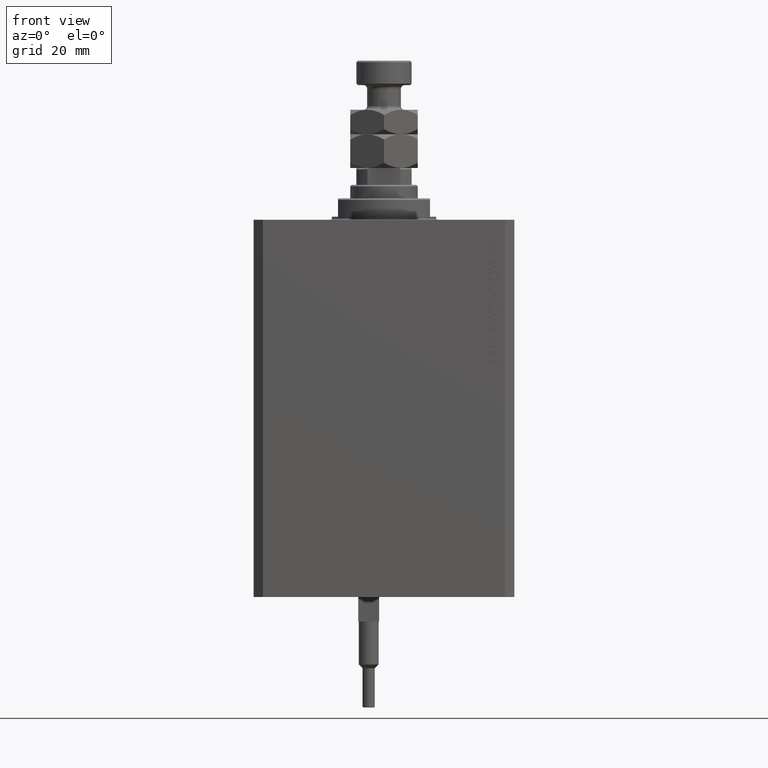
[diagram: clean part render]
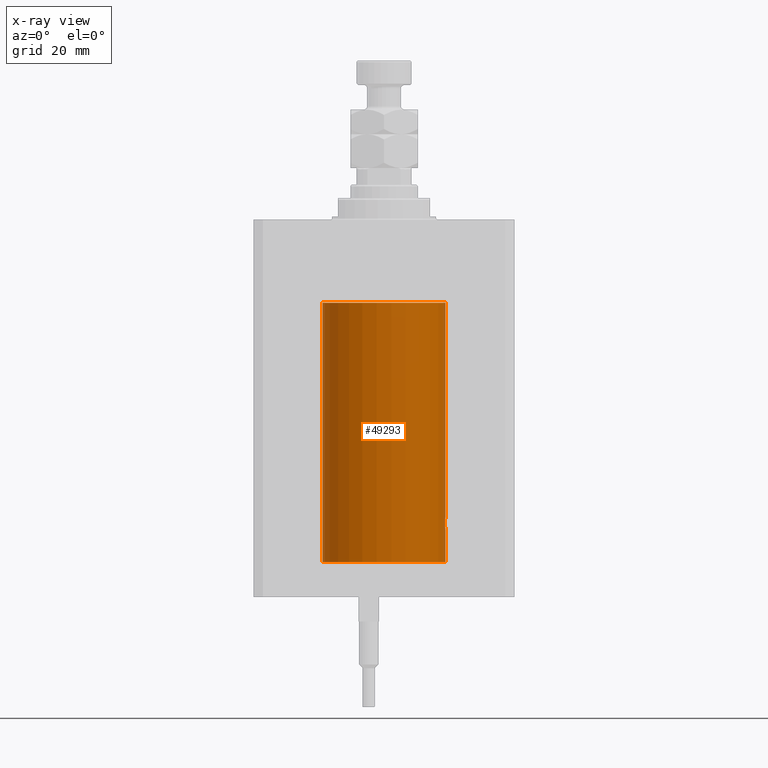
[diagram: x-ray — body ghosted, one internal face saturated and labeled with its STEP entity id]
A machine part, front view, then the same camera in x-ray: the body is ghosted and one INTERNAL B-rep face — a face not visible from any outside direction — is saturated and labeled: STEP entity #49293.
In plain terms, the highlighted cylindrical surface (partial cylindrical patch) has radius 20 mm, axis along (0, 0, 1).
Its self-contained STEP definition (entity closure, byte-faithful):
#997 = VECTOR ( 'NONE', #27153, 1000.000000000000000 ) ;
#1026 = CARTESIAN_POINT ( 'NONE',  ( 19.89974874213243439, -1.999999999999655609, -99.00000000000000000 ) ) ;
#1097 = EDGE_CURVE ( 'NONE', #15497, #25800, #22870, .T. ) ;
#1387 = CIRCLE ( 'NONE', #31936, 20.00000000000000000 ) ;
#2494 = CIRCLE ( 'NONE', #7306, 20.00000000000000000 ) ;
#3174 = AXIS2_PLACEMENT_3D ( 'NONE', #29318, #14698, #17991 ) ;
#3313 = CARTESIAN_POINT ( 'NONE',  ( 19.93679035661676835, -1.590502522866548585, -97.78041502771402804 ) ) ;
#4628 = ORIENTED_EDGE ( 'NONE', *, *, #48238, .F. ) ;
#4719 = VECTOR ( 'NONE', #8774, 1000.000000000000000 ) ;
#5150 = DIRECTION ( 'NONE',  ( 1.000000000000000000, 0.000000000000000000, 0.000000000000000000 ) ) ;
#5529 = CARTESIAN_POINT ( 'NONE',  ( 19.90106527362734568, -1.987020983172499422, -99.26214585379852906 ) ) ;
#6664 = FACE_OUTER_BOUND ( 'NONE', #29979, .T. ) ;
#7306 = AXIS2_PLACEMENT_3D ( 'NONE', #47583, #12308, #46835 ) ;
#8198 = CARTESIAN_POINT ( 'NONE',  ( 20.00000000000000000, 1.967327733996653312E-15, -101.0000000000000000 ) ) ;
#8278 = CARTESIAN_POINT ( 'NONE',  ( -20.00000000000000000, 2.449293598294706513E-15, -111.6000000000000085 ) ) ;
#8774 = DIRECTION ( 'NONE',  ( -0.000000000000000000, -0.000000000000000000, 1.000000000000000000 ) ) ;
#8865 = VECTOR ( 'NONE', #38895, 1000.000000000000000 ) ;
#9058 = CARTESIAN_POINT ( 'NONE',  ( 19.97604812261521090, -1.007662572237620457, -100.7471082404733096 ) ) ;
#9573 = VERTEX_POINT ( 'NONE', #11542 ) ;
#10026 = CARTESIAN_POINT ( 'NONE',  ( 19.92464121718639802, -1.736076547215872790, -100.0015422135783894 ) ) ;
#11067 = CARTESIAN_POINT ( 'NONE',  ( 19.90983652367462042, -1.897617924364799924, -98.35484020333801425 ) ) ;
#11542 = CARTESIAN_POINT ( 'NONE',  ( -20.00000000000000000, 2.449293598294706513E-15, -27.10000000000000142 ) ) ;
#12308 = DIRECTION ( 'NONE',  ( 0.000000000000000000, 0.000000000000000000, 1.000000000000000000 ) ) ;
#12574 = CARTESIAN_POINT ( 'NONE',  ( 20.00000000000000000, 0.000000000000000000, -111.6000000000000085 ) ) ;
#12640 = ORIENTED_EDGE ( 'NONE', *, *, #46452, .T. ) ;
#13079 = CARTESIAN_POINT ( 'NONE',  ( 19.90607187811043843, -1.936221525612430661, -99.51770555336665325 ) ) ;
#14248 = VERTEX_POINT ( 'NONE', #36505 ) ;
#14631 = CARTESIAN_POINT ( 'NONE',  ( 19.91915476385079842, -1.797169352086260830, -98.11266282055724730 ) ) ;
#14698 = DIRECTION ( 'NONE',  ( -0.000000000000000000, -0.000000000000000000, 1.000000000000000000 ) ) ;
#15497 = VERTEX_POINT ( 'NONE', #24870 ) ;
#16579 = LINE ( 'NONE', #8278, #4719 ) ;
#17597 = CARTESIAN_POINT ( 'NONE',  ( 20.00000000000000000, 1.967327733996653312E-15, -101.0000000000000000 ) ) ;
#17990 = EDGE_CURVE ( 'NONE', #14248, #45323, #1387, .T. ) ;
#17991 = DIRECTION ( 'NONE',  ( 1.000000000000000000, 0.000000000000000000, 0.000000000000000000 ) ) ;
#18406 = CARTESIAN_POINT ( 'NONE',  ( 19.96304361591165133, -1.229269670911803614, -97.40095624928315488 ) ) ;
#21197 = EDGE_CURVE ( 'NONE', #14248, #9573, #16579, .T. ) ;
#21371 = CARTESIAN_POINT ( 'NONE',  ( 19.91912874598169125, -1.797456133345314511, -99.88674870370387282 ) ) ;
#22175 = CARTESIAN_POINT ( 'NONE',  ( 19.99457156948952985, -0.5245703965536948621, -97.05250028761906833 ) ) ;
#22870 = LINE ( 'NONE', #29953, #997 ) ;
#23522 = CARTESIAN_POINT ( 'NONE',  ( 20.00000000000000000, 0.000000000000000000, -111.6000000000000085 ) ) ;
#23823 = VERTEX_POINT ( 'NONE', #31598 ) ;
#24285 = DIRECTION ( 'NONE',  ( 0.000000000000000000, 0.000000000000000000, 1.000000000000000000 ) ) ;
#24870 = CARTESIAN_POINT ( 'NONE',  ( 20.00000000000000000, -1.553109350199128042E-23, -97.00000000000000000 ) ) ;
#25800 = VERTEX_POINT ( 'NONE', #45036 ) ;
#26195 = CARTESIAN_POINT ( 'NONE',  ( 19.97612863609106171, -1.006156579624605252, -97.25197878504231142 ) ) ;
#26281 = ORIENTED_EDGE ( 'NONE', *, *, #34200, .T. ) ;
#27153 = DIRECTION ( 'NONE',  ( -0.000000000000000000, -0.000000000000000000, 1.000000000000000000 ) ) ;
#27300 = CARTESIAN_POINT ( 'NONE',  ( 0.000000000000000000, 0.000000000000000000, -111.6000000000000085 ) ) ;
#28394 = ORIENTED_EDGE ( 'NONE', *, *, #21197, .T. ) ;
#29179 = CARTESIAN_POINT ( 'NONE',  ( 19.96296989966237945, -1.230425635331405365, -100.5981187666770893 ) ) ;
#29318 = CARTESIAN_POINT ( 'NONE',  ( 0.000000000000000000, 0.000000000000000000, -111.6000000000000085 ) ) ;
#29953 = CARTESIAN_POINT ( 'NONE',  ( 20.00000000000000000, 0.000000000000000000, -111.6000000000000085 ) ) ;
#29979 = EDGE_LOOP ( 'NONE', ( #48798, #28394, #33259, #39882, #12640, #26281, #4628 ) ) ;
#30749 = CARTESIAN_POINT ( 'NONE',  ( 19.94343050116685845, -1.506032346525473020, -97.67754857126976731 ) ) ;
#31164 = EDGE_CURVE ( 'NONE', #9573, #25800, #2494, .T. ) ;
#31598 = CARTESIAN_POINT ( 'NONE',  ( 19.89974874213243439, -1.999999999999655609, -99.00000000000000000 ) ) ;
#31936 = AXIS2_PLACEMENT_3D ( 'NONE', #27300, #24285, #5150 ) ;
#32728 = CARTESIAN_POINT ( 'NONE',  ( 19.90981966846453588, -1.897793276286218411, -99.64463361322839319 ) ) ;
#32981 = CARTESIAN_POINT ( 'NONE',  ( 19.99999999999999645, -0.2642773949967771041, -100.9999999999999289 ) ) ;
#33259 = ORIENTED_EDGE ( 'NONE', *, *, #31164, .T. ) ;
#34200 = EDGE_CURVE ( 'NONE', #23823, #37089, #40521, .T. ) ;
#34270 = CARTESIAN_POINT ( 'NONE',  ( 19.90106531167246828, -1.987021080928412342, -98.73779127013027335 ) ) ;
#34591 = B_SPLINE_CURVE_WITH_KNOTS ( 'NONE', 3,
 ( #37804, #38050, #22175, #26195, #18406, #30749, #3313, #46106, #14631, #11067, #38295, #34270, #38552, #49626 ),
 .UNSPECIFIED., .F., .F.,
 ( 4, 2, 2, 2, 2, 2, 4 ),
 ( 0.006256819553330524898, 0.007039116231737640138, 0.007821412910144754510, 0.008212561249348312997, 0.008603709588551871484, 0.008994857927755429972, 0.009386006266958986724 ),
 .UNSPECIFIED. ) ;
#36263 = CARTESIAN_POINT ( 'NONE',  ( 19.94337316053471909, -1.506783194222099720, -100.3215850766146531 ) ) ;
#36505 = CARTESIAN_POINT ( 'NONE',  ( -20.00000000000000000, 2.449293598294706513E-15, -111.6000000000000085 ) ) ;
#37089 = VERTEX_POINT ( 'NONE', #8198 ) ;
#37804 = CARTESIAN_POINT ( 'NONE',  ( 20.00000000000000000, -1.553109350199128042E-23, -97.00000000000000000 ) ) ;
#38050 = CARTESIAN_POINT ( 'NONE',  ( 20.00000000000000000, -0.2612062508298597097, -97.00000000000005684 ) ) ;
#38295 = CARTESIAN_POINT ( 'NONE',  ( 19.90607912840593485, -1.936147476084615127, -98.48198538155280346 ) ) ;
#38552 = CARTESIAN_POINT ( 'NONE',  ( 19.89974874213243439, -1.999999999999655609, -98.86779873849403089 ) ) ;
#38895 = DIRECTION ( 'NONE',  ( -0.000000000000000000, -0.000000000000000000, 1.000000000000000000 ) ) ;
#39882 = ORIENTED_EDGE ( 'NONE', *, *, #1097, .F. ) ;
#40521 = B_SPLINE_CURVE_WITH_KNOTS ( 'NONE', 3,
 ( #1026, #40788, #5529, #13079, #32728, #21371, #10026, #47839, #36263, #29179, #9058, #48337, #32981, #17597 ),
 .UNSPECIFIED., .F., .F.,
 ( 4, 2, 2, 2, 2, 2, 4 ),
 ( 0.009386006266958986724, 0.009776776943204319378, 0.01016754761944965377, 0.01055831829569498642, 0.01094908897194031908, 0.01173063032443095663, 0.01251217167692159418 ),
 .UNSPECIFIED. ) ;
#40788 = CARTESIAN_POINT ( 'NONE',  ( 19.89974874213243083, -1.999999999999655165, -99.13207361806611573 ) ) ;
#43162 = LINE ( 'NONE', #23522, #8865 ) ;
#45036 = CARTESIAN_POINT ( 'NONE',  ( 20.00000000000000000, 0.000000000000000000, -27.10000000000000142 ) ) ;
#45323 = VERTEX_POINT ( 'NONE', #12574 ) ;
#46106 = CARTESIAN_POINT ( 'NONE',  ( 19.92467362751852988, -1.735709893904968437, -97.99780393930582534 ) ) ;
#46452 = EDGE_CURVE ( 'NONE', #15497, #23823, #34591, .T. ) ;
#46835 = DIRECTION ( 'NONE',  ( 1.000000000000000000, 0.000000000000000000, 0.000000000000000000 ) ) ;
#47583 = CARTESIAN_POINT ( 'NONE',  ( 0.000000000000000000, 0.000000000000000000, -27.10000000000000142 ) ) ;
#47839 = CARTESIAN_POINT ( 'NONE',  ( 19.93674030556024590, -1.591123942389839119, -100.2187588700503227 ) ) ;
#48238 = EDGE_CURVE ( 'NONE', #45323, #37089, #43162, .T. ) ;
#48337 = CARTESIAN_POINT ( 'NONE',  ( 19.99450726301181192, -0.5268413099739941430, -100.9468459871092705 ) ) ;
#48720 = CYLINDRICAL_SURFACE ( 'NONE', #3174, 20.00000000000000000 ) ;
#48798 = ORIENTED_EDGE ( 'NONE', *, *, #17990, .F. ) ;
#49293 = ADVANCED_FACE ( 'NONE', ( #6664 ), #48720, .F. ) ;
#49626 = CARTESIAN_POINT ( 'NONE',  ( 19.89974874213243439, -1.999999999999655609, -99.00000000000000000 ) ) ;